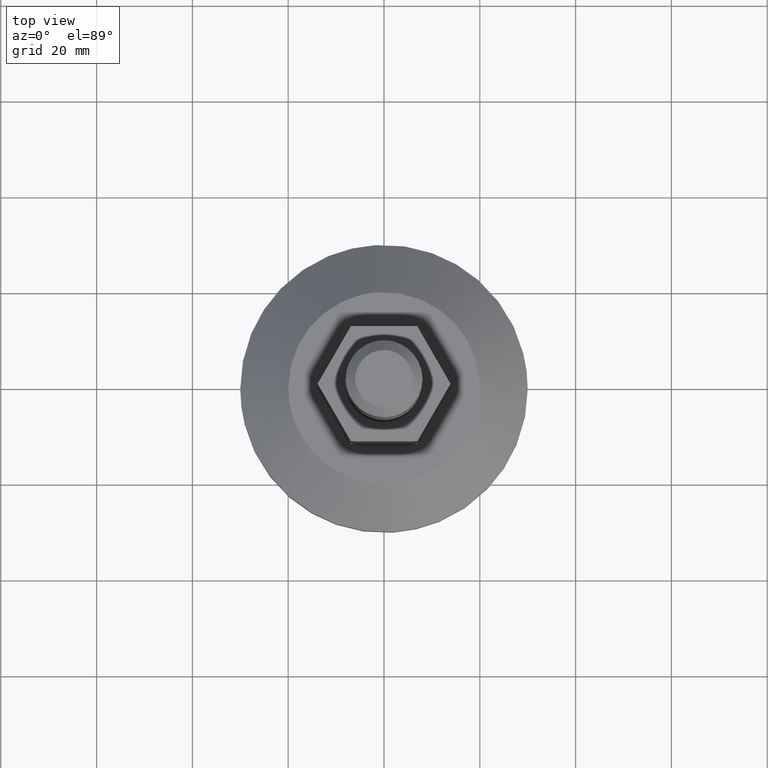
[diagram: clean part render]
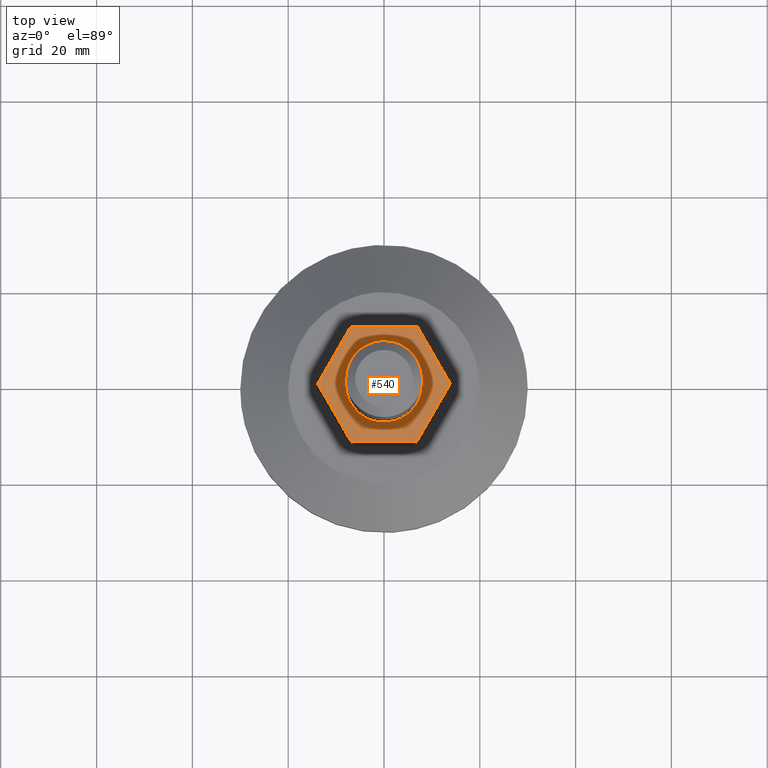
[diagram: same view with one face highlighted and labeled with its STEP entity id]
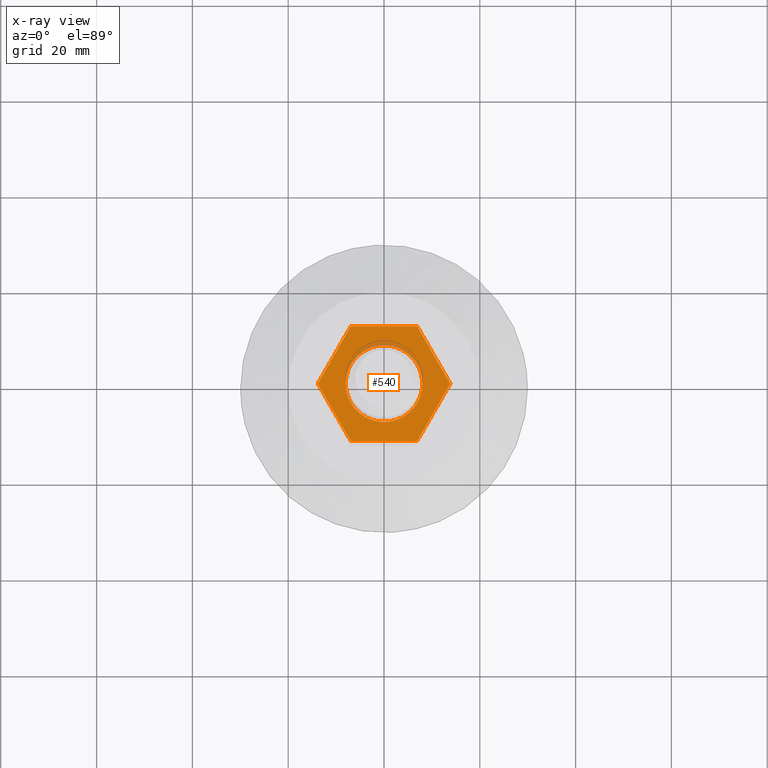
[diagram: x-ray of the same camera — body ghosted, the highlighted face saturated]
A machine part, top view. The second image highlights one B-rep face of the part: STEP entity #540.
The next image is the same camera in x-ray: the body ghosted, the highlighted face saturated — about 5% of this face is hidden behind the body in this view.
In plain terms, the highlighted face is a freeform B-spline surface patch.
Its self-contained STEP definition (entity closure, byte-faithful):
#381=CARTESIAN_POINT('',(-8.0,0.0,67.0));
#382=VERTEX_POINT('',#381);
#383=CARTESIAN_POINT('',(-0.627672766004982,-7.975338669850681,67.0));
#384=VERTEX_POINT('',#383);
#385=CARTESIAN_POINT('',(-8.0,0.0,67.0));
#386=CARTESIAN_POINT('',(-8.0,-7.395123933096168,67.0));
#387=CARTESIAN_POINT('',(-0.627672766004983,-7.975338669850682,67.0));
#395=(BOUNDED_CURVE()B_SPLINE_CURVE(2,(#385,#386,#387),.UNSPECIFIED.,.F.,.U.)B_SPLINE_CURVE_WITH_KNOTS((3,3),(0.0,0.236331300628850),.UNSPECIFIED.)CURVE()GEOMETRIC_REPRESENTATION_ITEM()RATIONAL_B_SPLINE_CURVE((1.0,0.723120658609786,0.969723356163641))REPRESENTATION_ITEM(''));
#396=EDGE_CURVE('',#382,#384,#395,.T.);
#405=CARTESIAN_POINT('',(0.627672766004983,7.975338669850681,67.0));
#406=VERTEX_POINT('',#405);
#412=CARTESIAN_POINT('',(0.627672766004984,7.975338669850682,67.000000000000014));
#413=CARTESIAN_POINT('',(0.314320856152892,8.0,67.0));
#414=CARTESIAN_POINT('',(0.0,8.0,67.0));
#415=CARTESIAN_POINT('',(-8.0,8.0,67.0));
#416=CARTESIAN_POINT('',(-8.0,0.0,67.0));
#424=(BOUNDED_CURVE()B_SPLINE_CURVE(2,(#412,#413,#414,#415,#416),.UNSPECIFIED.,.F.,.U.)B_SPLINE_CURVE_WITH_KNOTS((3,2,3),(0.736331300628850,0.750000000000000,1.0),.UNSPECIFIED.)CURVE()GEOMETRIC_REPRESENTATION_ITEM()RATIONAL_B_SPLINE_CURVE((0.969723356163641,0.983986122576762,1.0,0.707106781186548,1.0))REPRESENTATION_ITEM(''));
#425=EDGE_CURVE('',#406,#382,#424,.T.);
#448=CARTESIAN_POINT('',(8.0,0.0,67.0));
#449=VERTEX_POINT('',#448);
#450=CARTESIAN_POINT('',(-0.627672766004983,-7.975338669850682,67.0));
#451=CARTESIAN_POINT('',(-0.314320856152891,-8.0,67.0));
#452=CARTESIAN_POINT('',(0.0,-8.0,67.0));
#453=CARTESIAN_POINT('',(8.0,-8.0,67.0));
#454=CARTESIAN_POINT('',(8.0,0.0,67.0));
#462=(BOUNDED_CURVE()B_SPLINE_CURVE(2,(#450,#451,#452,#453,#454),.UNSPECIFIED.,.F.,.U.)B_SPLINE_CURVE_WITH_KNOTS((3,2,3),(0.236331300628850,0.250000000000000,0.500000000000000),.UNSPECIFIED.)CURVE()GEOMETRIC_REPRESENTATION_ITEM()RATIONAL_B_SPLINE_CURVE((0.969723356163641,0.983986122576762,1.0,0.707106781186548,1.0))REPRESENTATION_ITEM(''));
#463=EDGE_CURVE('',#384,#449,#462,.T.);
#465=CARTESIAN_POINT('',(8.0,0.0,67.0));
#466=CARTESIAN_POINT('',(8.0,7.395123933096166,67.0));
#467=CARTESIAN_POINT('',(0.627672766004984,7.975338669850682,67.000000000000014));
#475=(BOUNDED_CURVE()B_SPLINE_CURVE(2,(#465,#466,#467),.UNSPECIFIED.,.F.,.U.)B_SPLINE_CURVE_WITH_KNOTS((3,3),(0.500000000000000,0.736331300628850),.UNSPECIFIED.)CURVE()GEOMETRIC_REPRESENTATION_ITEM()RATIONAL_B_SPLINE_CURVE((1.0,0.723120658609786,0.969723356163641))REPRESENTATION_ITEM(''));
#476=EDGE_CURVE('',#449,#406,#475,.T.);
#485=CARTESIAN_POINT('',(-15.233614946312020,13.198799953483350,67.0));
#486=CARTESIAN_POINT('',(15.233615689283919,13.198799953483350,67.0));
#487=CARTESIAN_POINT('',(-15.233614946312020,-13.198800597213509,67.0));
#488=CARTESIAN_POINT('',(15.233615689283919,-13.198800597213509,67.0));
#489=B_SPLINE_SURFACE_WITH_KNOTS('',1,1,((#485,#487),(#486,#488)),.UNSPECIFIED.,.F.,.F.,.U.,(2,2),(2,2),(0.0,30.467230635595939),(0.0,26.397600550696851),.UNSPECIFIED.);
#490=CARTESIAN_POINT('',(-13.850000000000000,0.0,67.0));
#491=VERTEX_POINT('',#490);
#492=CARTESIAN_POINT('',(-6.921797000000001,12.0,67.0));
#493=VERTEX_POINT('',#492);
#494=CARTESIAN_POINT('',(-13.850000000000000,0.0,67.0));
#495=CARTESIAN_POINT('',(-6.921797000000001,12.0,67.0));
#496=QUASI_UNIFORM_CURVE('',1,(#494,#495),.UNSPECIFIED.,.F.,.U.);
#497=EDGE_CURVE('',#491,#493,#496,.T.);
#498=ORIENTED_EDGE('',*,*,#497,.F.);
#499=CARTESIAN_POINT('',(-6.921797000000001,-12.0,67.0));
#500=VERTEX_POINT('',#499);
#501=CARTESIAN_POINT('',(-6.921797000000001,-12.0,67.0));
#502=CARTESIAN_POINT('',(-13.850000000000000,0.0,67.0));
#503=QUASI_UNIFORM_CURVE('',1,(#501,#502),.UNSPECIFIED.,.F.,.U.);
#504=EDGE_CURVE('',#500,#491,#503,.T.);
#505=ORIENTED_EDGE('',*,*,#504,.F.);
#506=CARTESIAN_POINT('',(6.921797000000001,-12.0,67.0));
#507=VERTEX_POINT('',#506);
#508=CARTESIAN_POINT('',(6.921797000000001,-12.0,67.0));
#509=CARTESIAN_POINT('',(-6.921797000000001,-12.0,67.0));
#510=QUASI_UNIFORM_CURVE('',1,(#508,#509),.UNSPECIFIED.,.F.,.U.);
#511=EDGE_CURVE('',#507,#500,#510,.T.);
#512=ORIENTED_EDGE('',*,*,#511,.F.);
#513=CARTESIAN_POINT('',(13.850000000000000,0.0,67.0));
#514=VERTEX_POINT('',#513);
#515=CARTESIAN_POINT('',(13.850000000000000,0.0,67.0));
#516=CARTESIAN_POINT('',(6.921797000000001,-12.0,67.0));
#517=QUASI_UNIFORM_CURVE('',1,(#515,#516),.UNSPECIFIED.,.F.,.U.);
#518=EDGE_CURVE('',#514,#507,#517,.T.);
#519=ORIENTED_EDGE('',*,*,#518,.F.);
#520=CARTESIAN_POINT('',(6.921797000000001,12.0,67.0));
#521=VERTEX_POINT('',#520);
#522=CARTESIAN_POINT('',(6.921797000000001,12.0,67.0));
#523=CARTESIAN_POINT('',(13.850000000000000,0.0,67.0));
#524=QUASI_UNIFORM_CURVE('',1,(#522,#523),.UNSPECIFIED.,.F.,.U.);
#525=EDGE_CURVE('',#521,#514,#524,.T.);
#526=ORIENTED_EDGE('',*,*,#525,.F.);
#527=CARTESIAN_POINT('',(-6.921797000000001,12.0,67.0));
#528=CARTESIAN_POINT('',(6.921797000000001,12.0,67.0));
#529=QUASI_UNIFORM_CURVE('',1,(#527,#528),.UNSPECIFIED.,.F.,.U.);
#530=EDGE_CURVE('',#493,#521,#529,.T.);
#531=ORIENTED_EDGE('',*,*,#530,.F.);
#532=EDGE_LOOP('',(#498,#505,#512,#519,#526,#531));
#533=FACE_OUTER_BOUND('',#532,.T.);
#534=ORIENTED_EDGE('',*,*,#476,.F.);
#535=ORIENTED_EDGE('',*,*,#463,.F.);
#536=ORIENTED_EDGE('',*,*,#396,.F.);
#537=ORIENTED_EDGE('',*,*,#425,.F.);
#538=EDGE_LOOP('',(#534,#535,#536,#537));
#539=FACE_BOUND('',#538,.T.);
#540=ADVANCED_FACE('',(#533,#539),#489,.F.);